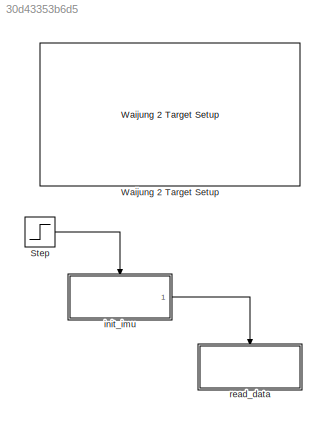
MODEL slx_30d43353b6d5
KIND model
CONFIG AbsTol = auto
CONFIG EnableMultiTasking = on
CONFIG FixedStep = auto
CONFIG MaxStep = auto
CONFIG MinStep = auto
CONFIG RelTol = 1e-3
CONFIG SampleTimeConstraint = Unconstrained
CONFIG Solver = FixedStepDiscrete
CONFIG SolverName = FixedStepDiscrete
CONFIG StartTime = 0.0
CONFIG StopTime = 10.0
BLOCK [Step] Step
  SampleTime = 0.2
BLOCK [Reference] Waijung 2 Target Setup  REF=esp32_device_config_lib/Waijung 2 Target Setup
  Ports = []
  SourceBlock = esp32_device_config_lib/Waijung 2 Target Setup
  SourceProductName = Waijung 2 Blockset
  SourceType = esp32_target_setup
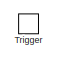
[diagram: init_imu - part 1/4, top left region]
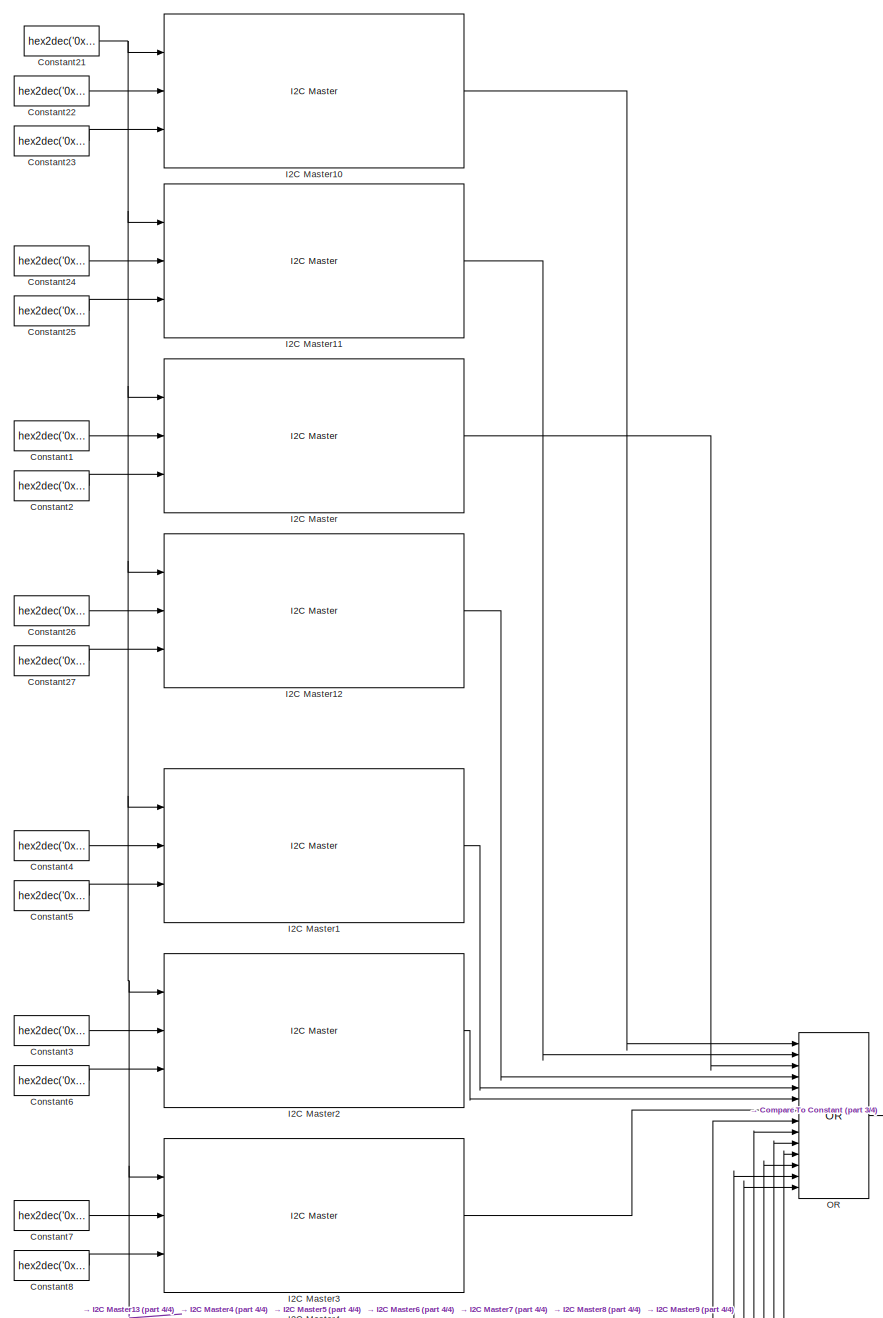
[diagram: init_imu - part 2/4, full width, top band]
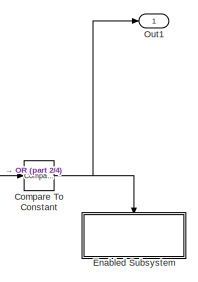
[diagram: init_imu - part 3/4, middle right region]
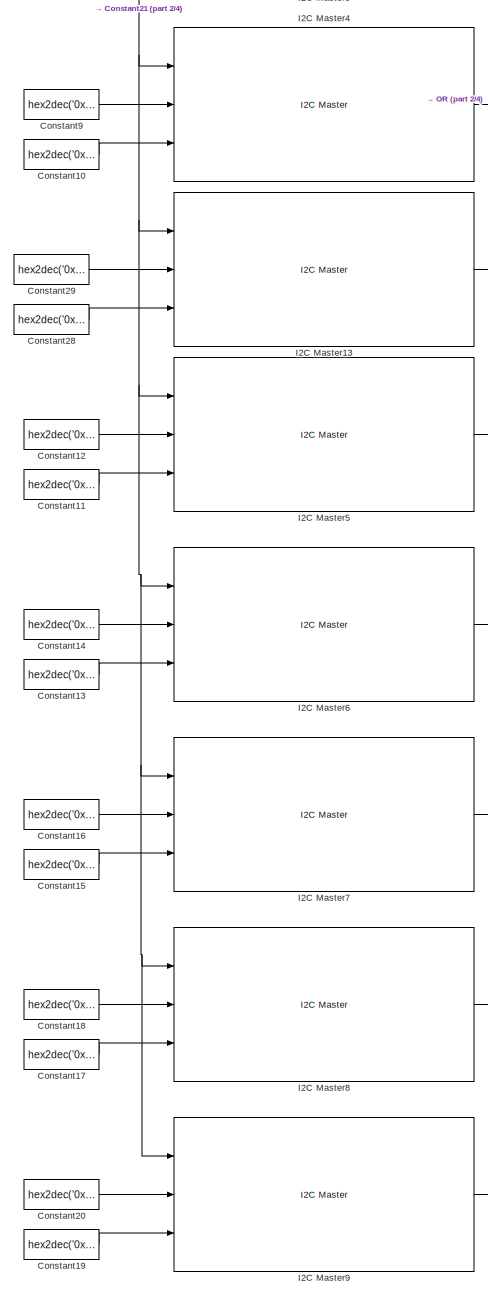
[diagram: init_imu - part 4/4, bottom left region]
BLOCK [SubSystem] init_imu
  Ports = [0, 1, 0, 1]
  RequestExecContextInheritance = off
  TreatAsAtomicUnit = on
BLOCK [Reference] init_imu/Compare To Constant  REF=simulink/Logic and Bit
Operations/Compare
To Constant
  Ports = [1, 1]
  SourceBlock = simulink/Logic and Bit\nOperations/Compare\nTo Constant
  SourceProductBaseCode = SL
  SourceType = Compare To Constant
BLOCK [Constant] init_imu/Constant1
  SampleTime = -1
  Value = hex2dec('0x6B')
BLOCK [Constant] init_imu/Constant10
  SampleTime = -1
  Value = hex2dec('0x00')
BLOCK [Constant] init_imu/Constant11
  SampleTime = -1
  Value = hex2dec('0x00')
BLOCK [Constant] init_imu/Constant12
  SampleTime = -1
  Value = hex2dec('0x6A')
BLOCK [Constant] init_imu/Constant13
  SampleTime = -1
  Value = hex2dec('0x00')
BLOCK [Constant] init_imu/Constant14
  SampleTime = -1
  Value = hex2dec('0x23')
BLOCK [Constant] init_imu/Constant15
  SampleTime = -1
  Value = hex2dec('0x22')
BLOCK [Constant] init_imu/Constant16
  SampleTime = -1
  Value = hex2dec('0x37')
BLOCK [Constant] init_imu/Constant17
  SampleTime = -1
  Value = hex2dec('0x01')
BLOCK [Constant] init_imu/Constant18
  SampleTime = -1
  Value = hex2dec('0x38')
BLOCK [Constant] init_imu/Constant19
  SampleTime = -1
  Value = hex2dec('0x18')
BLOCK [Constant] init_imu/Constant2
  SampleTime = -1
  Value = hex2dec('0x01')
BLOCK [Constant] init_imu/Constant20
  SampleTime = -1
  Value = hex2dec('0x1B')
BLOCK [Constant] init_imu/Constant21
  SampleTime = -1
  Value = hex2dec('0x68')
BLOCK [Constant] init_imu/Constant22
  SampleTime = -1
  Value = hex2dec('0x6B')
BLOCK [Constant] init_imu/Constant23
  SampleTime = -1
  Value = hex2dec('0x00')
BLOCK [Constant] init_imu/Constant24
  SampleTime = -1
  Value = hex2dec('0x6B')
BLOCK [Constant] init_imu/Constant25
  SampleTime = -1
  Value = hex2dec('0x80')
BLOCK [Constant] init_imu/Constant26
  SampleTime = -1
  Value = hex2dec('0x1C')
BLOCK [Constant] init_imu/Constant27
  SampleTime = -1
  Value = hex2dec('0x10')
BLOCK [Constant] init_imu/Constant28
  SampleTime = -1
  Value = hex2dec('0x00')
BLOCK [Constant] init_imu/Constant29
  SampleTime = -1
  Value = hex2dec('0x1D')
BLOCK [Constant] init_imu/Constant3
  SampleTime = -1
  Value = hex2dec('0x1A')
BLOCK [Constant] init_imu/Constant4
  SampleTime = -1
  Value = hex2dec('0x1B')
BLOCK [Constant] init_imu/Constant5
  SampleTime = -1
  Value = hex2dec('0x18')
BLOCK [Constant] init_imu/Constant6
  SampleTime = -1
  Value = hex2dec('0x01')
BLOCK [Constant] init_imu/Constant7
  SampleTime = -1
  Value = hex2dec('0x19')
BLOCK [Constant] init_imu/Constant8
  SampleTime = -1
  Value = hex2dec('0x01')
BLOCK [Constant] init_imu/Constant9
  SampleTime = -1
  Value = hex2dec('0x38')
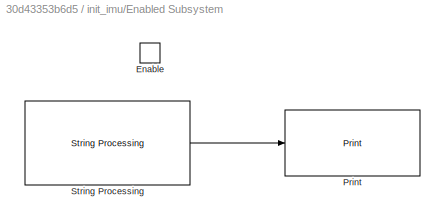
BLOCK [SubSystem] init_imu/Enabled Subsystem
  Ports = [0, 0, 1]
  RequestExecContextInheritance = off
  TreatAsAtomicUnit = on
BLOCK [EnablePort] init_imu/Enabled Subsystem/Enable
  Ports = []
BLOCK [Reference] init_imu/Enabled Subsystem/Print  REF=waijung2_utilities_lib/Print
  Ports = [1]
  SourceBlock = waijung2_utilities_lib/Print
  SourceProductName = Waijung 2 Blockset
  SourceType = waijung2_printf
BLOCK [Reference] init_imu/Enabled Subsystem/String Processing  REF=waijung2_utilities_lib/String Processing
  Ports = [0, 1]
  SourceBlock = waijung2_utilities_lib/String Processing
  SourceProductName = Waijung 2 Blockset
  SourceType = waijung2_string_processing_callback
BLOCK [Reference] init_imu/I2C Master  REF=esp32_i2c_lib/I2C Master
  Ports = [3, 1]
  SourceBlock = esp32_i2c_lib/I2C Master
  SourceProductName = Waijung 2 Blockset
  SourceType = esp32_i2cmaster
BLOCK [Reference] init_imu/I2C Master1  REF=esp32_i2c_lib/I2C Master
  Ports = [3, 1]
  SourceBlock = esp32_i2c_lib/I2C Master
  SourceProductName = Waijung 2 Blockset
  SourceType = esp32_i2cmaster
BLOCK [Reference] init_imu/I2C Master10  REF=esp32_i2c_lib/I2C Master
  Ports = [3, 1]
  SourceBlock = esp32_i2c_lib/I2C Master
  SourceProductName = Waijung 2 Blockset
  SourceType = esp32_i2cmaster
BLOCK [Reference] init_imu/I2C Master11  REF=esp32_i2c_lib/I2C Master
  Ports = [3, 1]
  SourceBlock = esp32_i2c_lib/I2C Master
  SourceProductName = Waijung 2 Blockset
  SourceType = esp32_i2cmaster
BLOCK [Reference] init_imu/I2C Master12  REF=esp32_i2c_lib/I2C Master
  Ports = [3, 1]
  SourceBlock = esp32_i2c_lib/I2C Master
  SourceProductName = Waijung 2 Blockset
  SourceType = esp32_i2cmaster
BLOCK [Reference] init_imu/I2C Master13  REF=esp32_i2c_lib/I2C Master
  Ports = [3, 1]
  SourceBlock = esp32_i2c_lib/I2C Master
  SourceProductName = Waijung 2 Blockset
  SourceType = esp32_i2cmaster
BLOCK [Reference] init_imu/I2C Master2  REF=esp32_i2c_lib/I2C Master
  Ports = [3, 1]
  SourceBlock = esp32_i2c_lib/I2C Master
  SourceProductName = Waijung 2 Blockset
  SourceType = esp32_i2cmaster
BLOCK [Reference] init_imu/I2C Master3  REF=esp32_i2c_lib/I2C Master
  Ports = [3, 1]
  SourceBlock = esp32_i2c_lib/I2C Master
  SourceProductName = Waijung 2 Blockset
  SourceType = esp32_i2cmaster
BLOCK [Reference] init_imu/I2C Master4  REF=esp32_i2c_lib/I2C Master
  Ports = [3, 1]
  SourceBlock = esp32_i2c_lib/I2C Master
  SourceProductName = Waijung 2 Blockset
  SourceType = esp32_i2cmaster
BLOCK [Reference] init_imu/I2C Master5  REF=esp32_i2c_lib/I2C Master
  Ports = [3, 1]
  SourceBlock = esp32_i2c_lib/I2C Master
  SourceProductName = Waijung 2 Blockset
  SourceType = esp32_i2cmaster
BLOCK [Reference] init_imu/I2C Master6  REF=esp32_i2c_lib/I2C Master
  Ports = [3, 1]
  SourceBlock = esp32_i2c_lib/I2C Master
  SourceProductName = Waijung 2 Blockset
  SourceType = esp32_i2cmaster
BLOCK [Reference] init_imu/I2C Master7  REF=esp32_i2c_lib/I2C Master
  Ports = [3, 1]
  SourceBlock = esp32_i2c_lib/I2C Master
  SourceProductName = Waijung 2 Blockset
  SourceType = esp32_i2cmaster
BLOCK [Reference] init_imu/I2C Master8  REF=esp32_i2c_lib/I2C Master
  Ports = [3, 1]
  SourceBlock = esp32_i2c_lib/I2C Master
  SourceProductName = Waijung 2 Blockset
  SourceType = esp32_i2cmaster
BLOCK [Reference] init_imu/I2C Master9  REF=esp32_i2c_lib/I2C Master
  Ports = [3, 1]
  SourceBlock = esp32_i2c_lib/I2C Master
  SourceProductName = Waijung 2 Blockset
  SourceType = esp32_i2cmaster
BLOCK [Logic] init_imu/OR
  AllPortsSameDT = off
  IconShape = distinctive
  Inputs = 14
  Operator = OR
  OutDataTypeStr = boolean
  Ports = [14, 1]
BLOCK [Outport] init_imu/Out1
BLOCK [TriggerPort] init_imu/Trigger
  Ports = []
  StatesWhenEnabling = held
  VariantControl = Variant
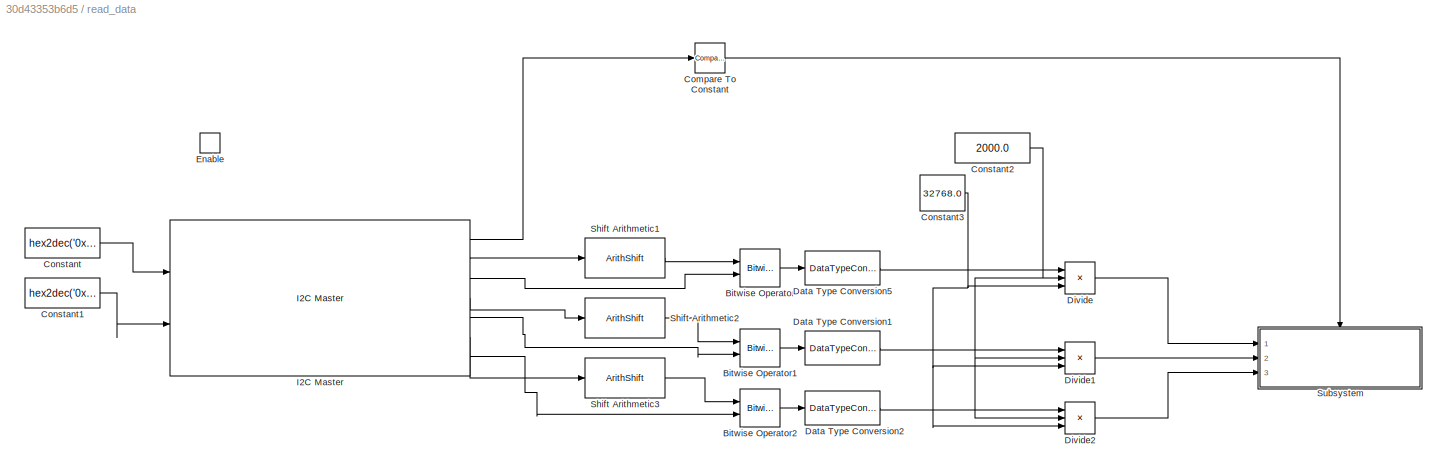
BLOCK [SubSystem] read_data
  Ports = [0, 0, 1]
  RequestExecContextInheritance = off
  TreatAsAtomicUnit = on
BLOCK [Reference] read_data/Bitwise Operator  REF=simulink/Logic and Bit
Operations/Bitwise
Operator
  Ports = [2, 1]
  SourceBlock = simulink/Logic and Bit\nOperations/Bitwise\nOperator
  SourceProductBaseCode = SL
  SourceType = Bitwise Operator
BLOCK [Reference] read_data/Bitwise Operator1  REF=simulink/Logic and Bit
Operations/Bitwise
Operator
  Ports = [2, 1]
  SourceBlock = simulink/Logic and Bit\nOperations/Bitwise\nOperator
  SourceProductBaseCode = SL
  SourceType = Bitwise Operator
BLOCK [Reference] read_data/Bitwise Operator2  REF=simulink/Logic and Bit
Operations/Bitwise
Operator
  Ports = [2, 1]
  SourceBlock = simulink/Logic and Bit\nOperations/Bitwise\nOperator
  SourceProductBaseCode = SL
  SourceType = Bitwise Operator
BLOCK [Reference] read_data/Compare To Constant  REF=simulink/Logic and Bit
Operations/Compare
To Constant
  Ports = [1, 1]
  SourceBlock = simulink/Logic and Bit\nOperations/Compare\nTo Constant
  SourceProductBaseCode = SL
  SourceType = Compare To Constant
BLOCK [Constant] read_data/Constant
  SampleTime = -1
  Value = hex2dec('0x68')
BLOCK [Constant] read_data/Constant1
  SampleTime = -1
  Value = hex2dec('0x43')
BLOCK [Constant] read_data/Constant2
  SampleTime = -1
  Value = 2000.0
BLOCK [Constant] read_data/Constant3
  SampleTime = -1
  Value = 32768.0
BLOCK [DataTypeConversion] read_data/Data Type Conversion1
  OutDataTypeStr = single
  RndMeth = Floor
  SaturateOnIntegerOverflow = off
BLOCK [DataTypeConversion] read_data/Data Type Conversion2
  OutDataTypeStr = single
  RndMeth = Floor
  SaturateOnIntegerOverflow = off
BLOCK [DataTypeConversion] read_data/Data Type Conversion5
  OutDataTypeStr = single
  RndMeth = Floor
  SaturateOnIntegerOverflow = off
BLOCK [Product] read_data/Divide
  Inputs = **/
  Ports = [3, 1]
BLOCK [Product] read_data/Divide1
  Inputs = **/
  Ports = [3, 1]
BLOCK [Product] read_data/Divide2
  Inputs = **/
  Ports = [3, 1]
BLOCK [EnablePort] read_data/Enable
  Ports = []
BLOCK [Reference] read_data/I2C Master  REF=esp32_i2c_lib/I2C Master
  Ports = [2, 7]
  SourceBlock = esp32_i2c_lib/I2C Master
  SourceProductName = Waijung 2 Blockset
  SourceType = esp32_i2cmaster
BLOCK [ArithShift] read_data/Shift Arithmetic1
  BitShiftNumber = -8
  InputPortMap = u0
  Ports = [1, 1]
BLOCK [ArithShift] read_data/Shift Arithmetic2
  BitShiftNumber = -8
  InputPortMap = u0
  Ports = [1, 1]
BLOCK [ArithShift] read_data/Shift Arithmetic3
  BitShiftNumber = -8
  InputPortMap = u0
  Ports = [1, 1]
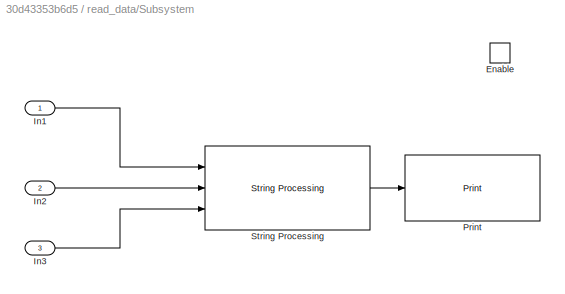
BLOCK [SubSystem] read_data/Subsystem
  Ports = [3, 0, 1]
  RequestExecContextInheritance = off
BLOCK [EnablePort] read_data/Subsystem/Enable
  Ports = []
BLOCK [Inport] read_data/Subsystem/In1
BLOCK [Inport] read_data/Subsystem/In2
  Port = 2
BLOCK [Inport] read_data/Subsystem/In3
  Port = 3
BLOCK [Reference] read_data/Subsystem/Print  REF=waijung2_utilities_lib/Print
  Ports = [1]
  SourceBlock = waijung2_utilities_lib/Print
  SourceProductName = Waijung 2 Blockset
  SourceType = waijung2_printf
BLOCK [Reference] read_data/Subsystem/String Processing  REF=waijung2_utilities_lib/String Processing
  Ports = [3, 1]
  SourceBlock = waijung2_utilities_lib/String Processing
  SourceProductName = Waijung 2 Blockset
  SourceType = waijung2_string_processing_callback
LINE Step:1 -> init_imu:trigger
NET init_imu/Compare To Constant:1 -> init_imu/Enabled Subsystem:enable, init_imu/Out1:1
LINE init_imu/Constant10:1 -> init_imu/I2C Master4:3
LINE init_imu/Constant11:1 -> init_imu/I2C Master5:3
LINE init_imu/Constant12:1 -> init_imu/I2C Master5:2
LINE init_imu/Constant13:1 -> init_imu/I2C Master6:3
LINE init_imu/Constant14:1 -> init_imu/I2C Master6:2
LINE init_imu/Constant15:1 -> init_imu/I2C Master7:3
LINE init_imu/Constant16:1 -> init_imu/I2C Master7:2
LINE init_imu/Constant17:1 -> init_imu/I2C Master8:3
LINE init_imu/Constant18:1 -> init_imu/I2C Master8:2
LINE init_imu/Constant19:1 -> init_imu/I2C Master9:3
LINE init_imu/Constant1:1 -> init_imu/I2C Master:2
LINE init_imu/Constant20:1 -> init_imu/I2C Master9:2
NET init_imu/Constant21:1 -> init_imu/I2C Master10:1, init_imu/I2C Master11:1, init_imu/I2C Master12:1, init_imu/I2C Master13:1, init_imu/I2C Master1:1, init_imu/I2C Master2:1, init_imu/I2C Master3:1, init_imu/I2C Master4:1, init_imu/I2C Master5:1, init_imu/I2C Master6:1, init_imu/I2C Master7:1, init_imu/I2C Master8:1, init_imu/I2C Master9:1, init_imu/I2C Master:1
LINE init_imu/Constant22:1 -> init_imu/I2C Master10:2
LINE init_imu/Constant23:1 -> init_imu/I2C Master10:3
LINE init_imu/Constant24:1 -> init_imu/I2C Master11:2
LINE init_imu/Constant25:1 -> init_imu/I2C Master11:3
LINE init_imu/Constant26:1 -> init_imu/I2C Master12:2
LINE init_imu/Constant27:1 -> init_imu/I2C Master12:3
LINE init_imu/Constant28:1 -> init_imu/I2C Master13:3
LINE init_imu/Constant29:1 -> init_imu/I2C Master13:2
LINE init_imu/Constant2:1 -> init_imu/I2C Master:3
LINE init_imu/Constant3:1 -> init_imu/I2C Master2:2
LINE init_imu/Constant4:1 -> init_imu/I2C Master1:2
LINE init_imu/Constant5:1 -> init_imu/I2C Master1:3
LINE init_imu/Constant6:1 -> init_imu/I2C Master2:3
LINE init_imu/Constant7:1 -> init_imu/I2C Master3:2
LINE init_imu/Constant8:1 -> init_imu/I2C Master3:3
LINE init_imu/Constant9:1 -> init_imu/I2C Master4:2
LINE init_imu/Enabled Subsystem/String Processing:1 -> init_imu/Enabled Subsystem/Print:1
LINE init_imu/I2C Master10:1 -> init_imu/OR:1
LINE init_imu/I2C Master11:1 -> init_imu/OR:2
LINE init_imu/I2C Master12:1 -> init_imu/OR:4
LINE init_imu/I2C Master13:1 -> init_imu/OR:9
LINE init_imu/I2C Master1:1 -> init_imu/OR:5
LINE init_imu/I2C Master2:1 -> init_imu/OR:6
LINE init_imu/I2C Master3:1 -> init_imu/OR:7
LINE init_imu/I2C Master4:1 -> init_imu/OR:8
LINE init_imu/I2C Master5:1 -> init_imu/OR:10
LINE init_imu/I2C Master6:1 -> init_imu/OR:11
LINE init_imu/I2C Master7:1 -> init_imu/OR:12
LINE init_imu/I2C Master8:1 -> init_imu/OR:13
LINE init_imu/I2C Master9:1 -> init_imu/OR:14
LINE init_imu/I2C Master:1 -> init_imu/OR:3
LINE init_imu/OR:1 -> init_imu/Compare To Constant:1
LINE init_imu:1 -> read_data:enable
LINE read_data/Bitwise Operator1:1 -> read_data/Data Type Conversion1:1
LINE read_data/Bitwise Operator2:1 -> read_data/Data Type Conversion2:1
LINE read_data/Bitwise Operator:1 -> read_data/Data Type Conversion5:1
LINE read_data/Compare To Constant:1 -> read_data/Subsystem:enable
LINE read_data/Constant1:1 -> read_data/I2C Master:2
NET read_data/Constant2:1 -> read_data/Divide1:2, read_data/Divide2:2, read_data/Divide:2
NET read_data/Constant3:1 -> read_data/Divide1:3, read_data/Divide2:3, read_data/Divide:3
LINE read_data/Constant:1 -> read_data/I2C Master:1
LINE read_data/Data Type Conversion1:1 -> read_data/Divide1:1
LINE read_data/Data Type Conversion2:1 -> read_data/Divide2:1
LINE read_data/Data Type Conversion5:1 -> read_data/Divide:1
LINE read_data/Divide1:1 -> read_data/Subsystem:2
LINE read_data/Divide2:1 -> read_data/Subsystem:3
LINE read_data/Divide:1 -> read_data/Subsystem:1
LINE read_data/I2C Master:1 -> read_data/Compare To Constant:1
LINE read_data/I2C Master:2 -> read_data/Shift Arithmetic1:1
LINE read_data/I2C Master:3 -> read_data/Bitwise Operator:2
LINE read_data/I2C Master:4 -> read_data/Shift Arithmetic2:1
LINE read_data/I2C Master:5 -> read_data/Bitwise Operator1:2
LINE read_data/I2C Master:6 -> read_data/Shift Arithmetic3:1
LINE read_data/I2C Master:7 -> read_data/Bitwise Operator2:2
LINE read_data/Shift Arithmetic1:1 -> read_data/Bitwise Operator:1
LINE read_data/Shift Arithmetic2:1 -> read_data/Bitwise Operator1:1
LINE read_data/Shift Arithmetic3:1 -> read_data/Bitwise Operator2:1
LINE read_data/Subsystem/In1:1 -> read_data/Subsystem/String Processing:1
LINE read_data/Subsystem/In2:1 -> read_data/Subsystem/String Processing:2
LINE read_data/Subsystem/In3:1 -> read_data/Subsystem/String Processing:3
LINE read_data/Subsystem/String Processing:1 -> read_data/Subsystem/Print:1
note: NET lines group one-source signal fan-out (src -> all destinations, sorted); 1:1 wires keep LINE
